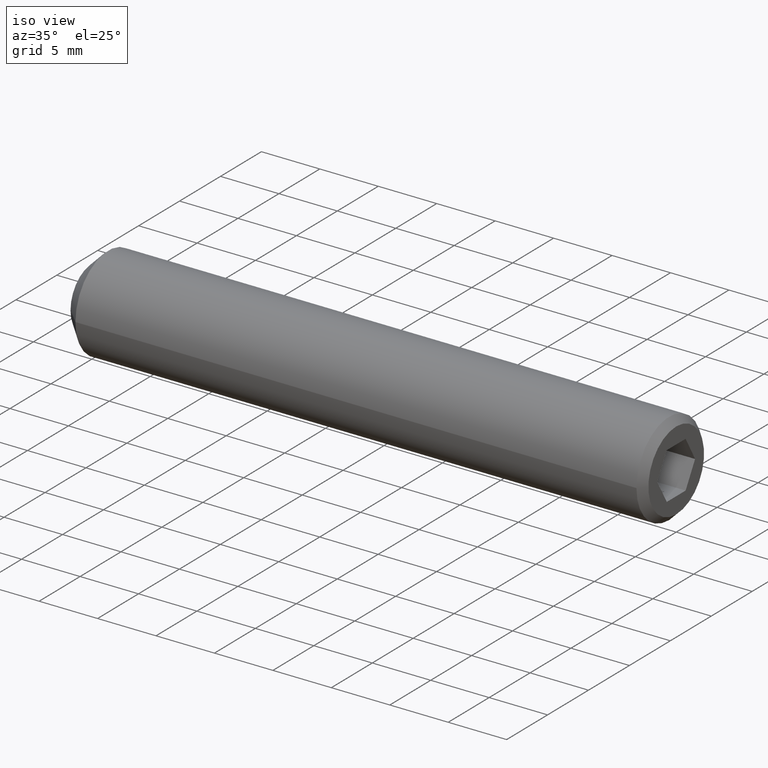
[diagram: clean part render]
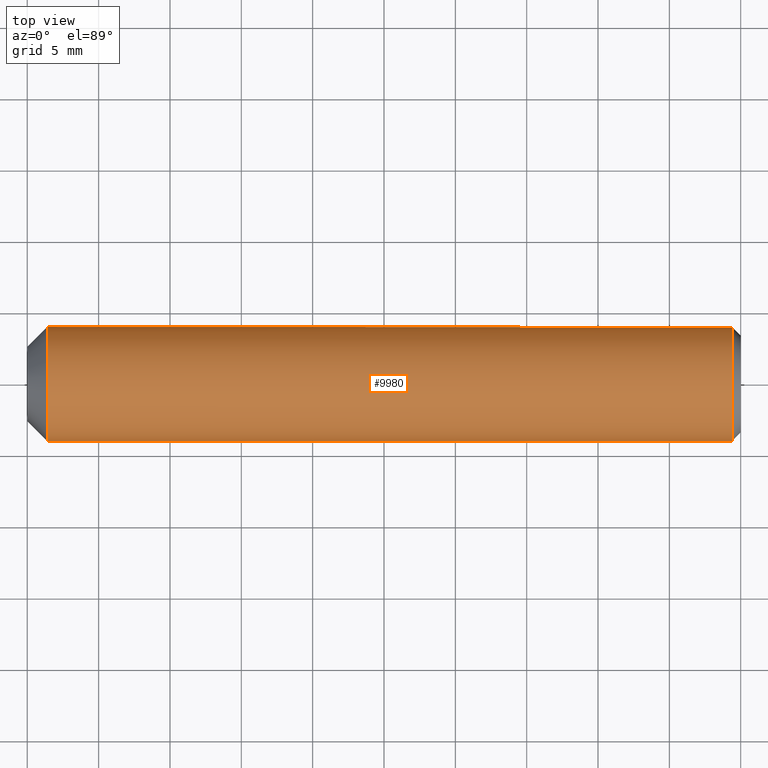
[diagram: tour spotlight — one face highlighted and labeled with its STEP entity id]
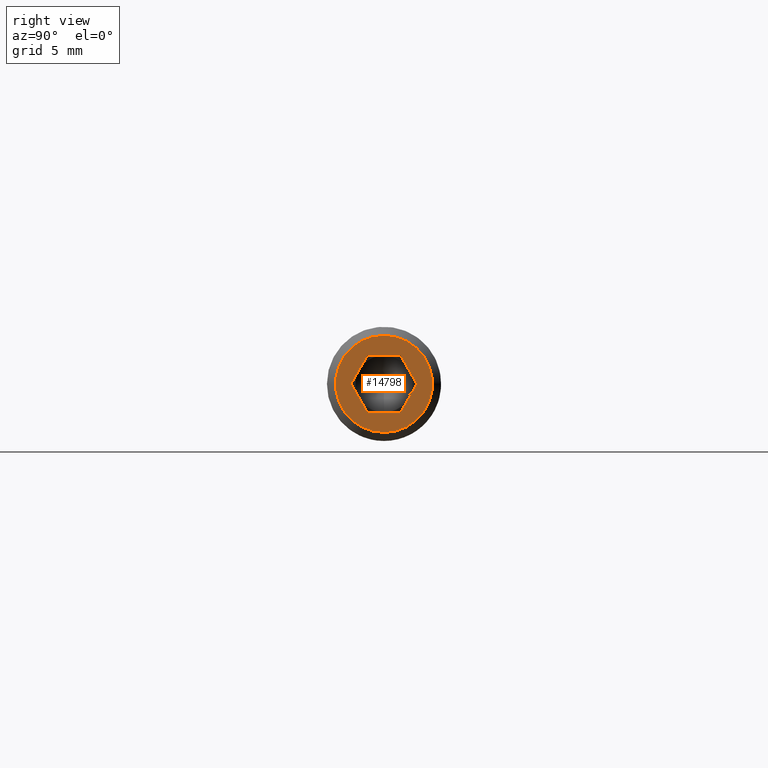
[diagram: tour spotlight — one face highlighted and labeled with its STEP entity id]
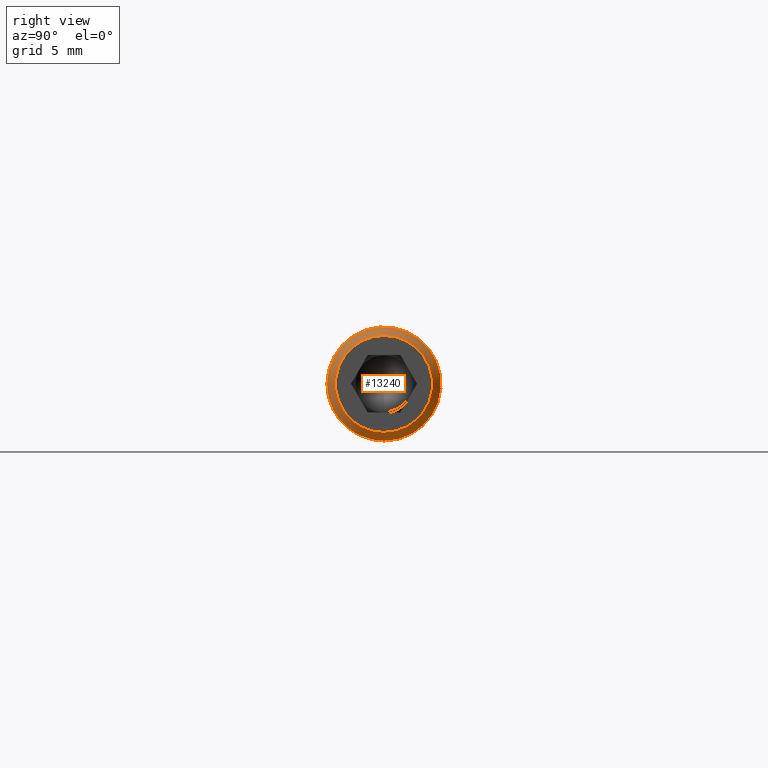
[diagram: tour spotlight — one face highlighted and labeled with its STEP entity id]
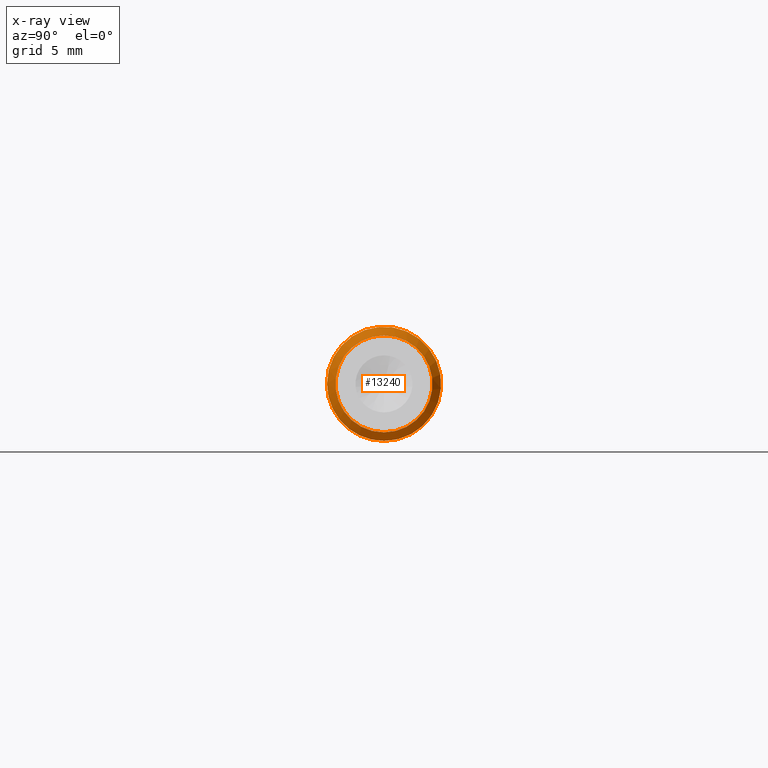
[diagram: x-ray of the same camera — body ghosted, this tour face saturated]
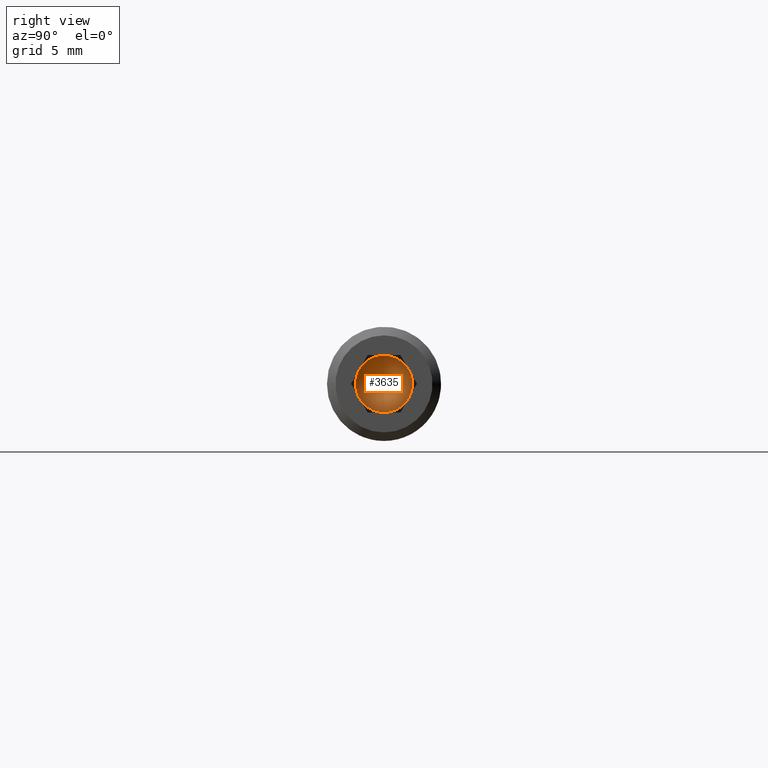
[diagram: tour spotlight — one face highlighted and labeled with its STEP entity id]
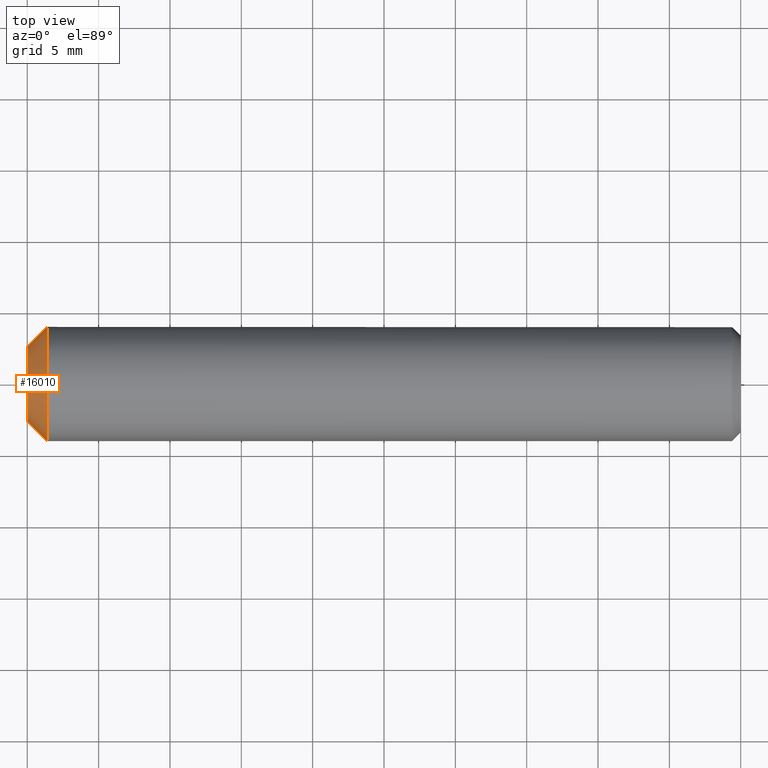
[diagram: tour spotlight — one face highlighted and labeled with its STEP entity id]
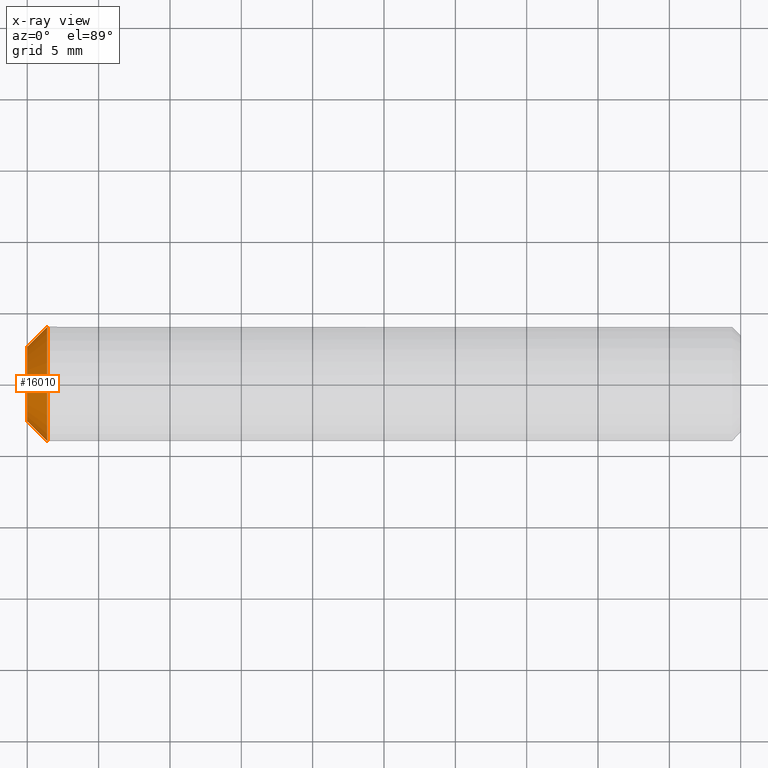
[diagram: x-ray of the same camera — body ghosted, this tour face saturated]
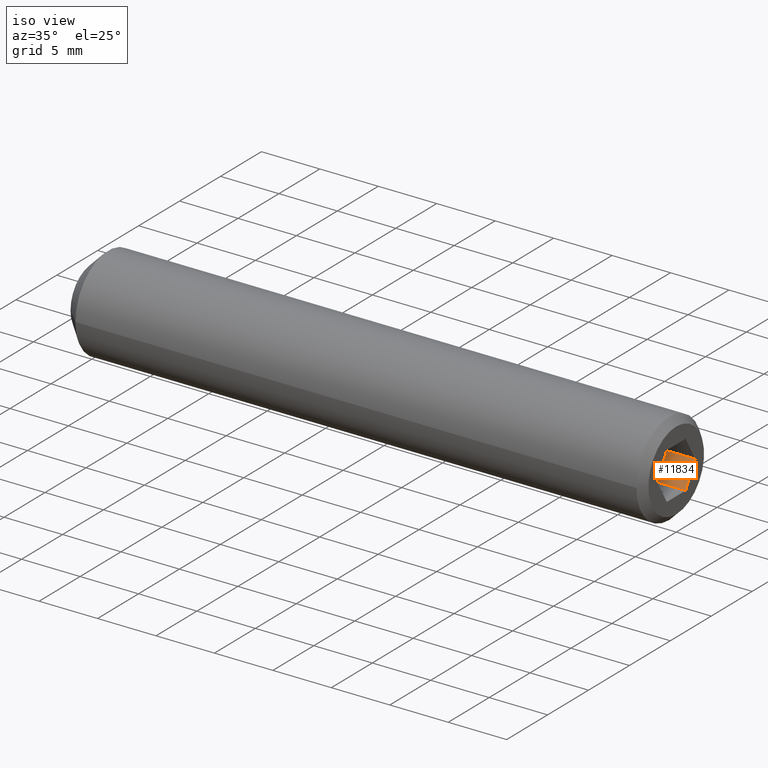
[diagram: tour spotlight — one face highlighted and labeled with its STEP entity id]
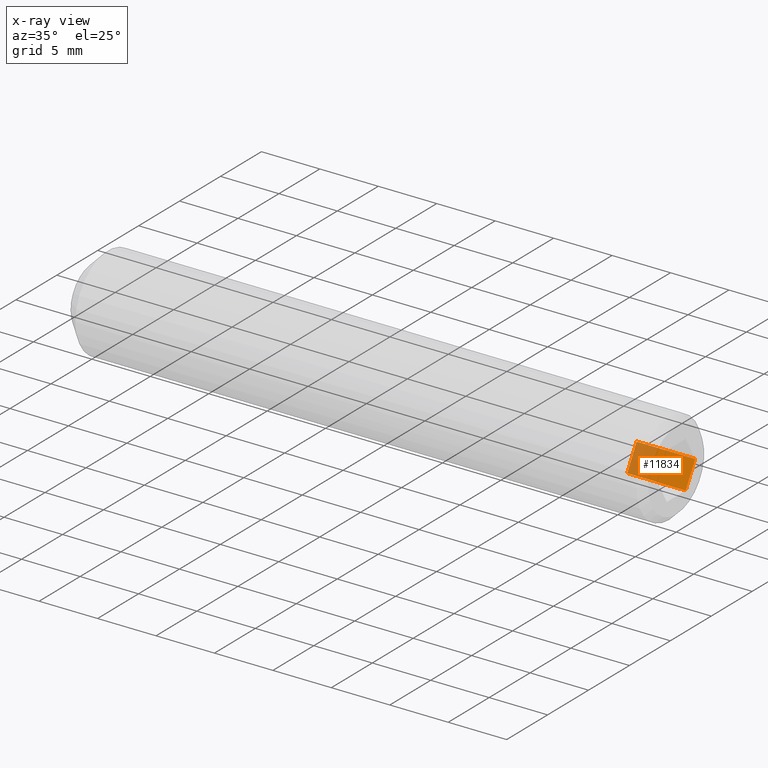
[diagram: x-ray of the same camera — body ghosted, this tour face saturated]
A machine part: a face-by-face anatomy tour. The part has 296 B-rep faces; the first image is the clean iso view, then the 6 largest visible faces are spotlighted one at a time (largest first), each with its STEP entity span.

Face 1 — top view, entity #9980. In plain terms, the highlighted cylindrical surface (bore or boss wall) has radius 4 mm, axis along (-1, -0, -0).
Definition (entity closure, byte-faithful):
#408 = DIRECTION ( 'NONE',  ( -1.000000000000000000, 0.0000000000000000000, 0.0000000000000000000 ) ) ;
#593 = CARTESIAN_POINT ( 'NONE',  ( 1.399999999999984400, -4.538988261647290200E-017, 0.0000000000000000000 ) ) ;
#1023 = CARTESIAN_POINT ( 'NONE',  ( 49.39999999999999900, 0.0000000000000000000, -4.000000000000000000 ) ) ;
#1213 = CIRCLE ( 'NONE', #15549, 4.000000000000000000 ) ;
#1735 = CARTESIAN_POINT ( 'NONE',  ( 49.39999999999999900, 0.0000000000000000000, 0.0000000000000000000 ) ) ;
#2731 = ORIENTED_EDGE ( 'NONE', *, *, #11013, .T. ) ;
#2830 = EDGE_LOOP ( 'NONE', ( #4532 ) ) ;
#3274 = VERTEX_POINT ( 'NONE', #1023 ) ;
#3319 = DIRECTION ( 'NONE',  ( 0.0000000000000000000, 0.0000000000000000000, -1.000000000000000000 ) ) ;
#4532 = ORIENTED_EDGE ( 'NONE', *, *, #13431, .F. ) ;
#6885 = FACE_OUTER_BOUND ( 'NONE', #2830, .T. ) ;
#7116 = CIRCLE ( 'NONE', #16351, 4.000000000000000000 ) ;
#9779 = AXIS2_PLACEMENT_3D ( 'NONE', #15257, #13717, #16650 ) ;
#9980 = ADVANCED_FACE ( 'NONE', ( #15437, #6885 ), #13478, .T. ) ;
#10343 = DIRECTION ( 'NONE',  ( -1.000000000000000000, 3.242134472605243700E-017, -0.0000000000000000000 ) ) ;
#11013 = EDGE_CURVE ( 'NONE', #3274, #3274, #7116, .T. ) ;
#12415 = CARTESIAN_POINT ( 'NONE',  ( 1.399999999999984100, -4.000000000000000000, 0.0000000000000000000 ) ) ;
#12910 = VERTEX_POINT ( 'NONE', #12415 ) ;
#13431 = EDGE_CURVE ( 'NONE', #12910, #12910, #1213, .T. ) ;
#13478 = CYLINDRICAL_SURFACE ( 'NONE', #9779, 4.000000000000000000 ) ;
#13717 = DIRECTION ( 'NONE',  ( -1.000000000000000000, -0.0000000000000000000, -0.0000000000000000000 ) ) ;
#15257 = CARTESIAN_POINT ( 'NONE',  ( 50.00000000000000000, 0.0000000000000000000, 0.0000000000000000000 ) ) ;
#15437 = FACE_OUTER_BOUND ( 'NONE', #16040, .T. ) ;
#15549 = AXIS2_PLACEMENT_3D ( 'NONE', #593, #10343, #15728 ) ;
#15728 = DIRECTION ( 'NONE',  ( -5.421010862427522200E-017, -1.000000000000000000, 0.0000000000000000000 ) ) ;
#16040 = EDGE_LOOP ( 'NONE', ( #2731 ) ) ;
#16351 = AXIS2_PLACEMENT_3D ( 'NONE', #1735, #408, #3319 ) ;
#16650 = DIRECTION ( 'NONE',  ( 0.0000000000000000000, 0.0000000000000000000, 1.000000000000000000 ) ) ;

Face 2 — right view, entity #14798. In plain terms, the highlighted planar face has unit normal (1, 0, 0).
Definition (entity closure, byte-faithful):
#169 = DIRECTION ( 'NONE',  ( 0.0000000000000000000, 1.000000000000000000, 1.877893248421447600E-016 ) ) ;
#290 = EDGE_CURVE ( 'NONE', #9988, #14489, #11666, .T. ) ;
#473 = VERTEX_POINT ( 'NONE', #9593 ) ;
#1322 = CARTESIAN_POINT ( 'NONE',  ( 50.00000000000000000, 2.309401076758500700, -2.008531840100152800E-016 ) ) ;
#1410 = VECTOR ( 'NONE', #169, 1000.000000000000000 ) ;
#1452 = EDGE_CURVE ( 'NONE', #473, #473, #9650, .T. ) ;
#1721 = CARTESIAN_POINT ( 'NONE',  ( 50.00000000000000000, -1.154700538379254300, 2.000000000000000000 ) ) ;
#1797 = EDGE_LOOP ( 'NONE', ( #2387, #9385, #6445, #11546, #5623, #9353 ) ) ;
#1820 = EDGE_CURVE ( 'NONE', #14489, #9138, #6803, .T. ) ;
#2387 = ORIENTED_EDGE ( 'NONE', *, *, #16859, .F. ) ;
#2442 = DIRECTION ( 'NONE',  ( 0.0000000000000000000, 0.0000000000000000000, -1.000000000000000000 ) ) ;
#2645 = VERTEX_POINT ( 'NONE', #17143 ) ;
#2829 = EDGE_CURVE ( 'NONE', #9138, #17783, #8749, .T. ) ;
#3111 = VECTOR ( 'NONE', #13780, 999.9999999999998900 ) ;
#4524 = CARTESIAN_POINT ( 'NONE',  ( 50.00000000000000000, -2.309401076758506500, -4.766870681724039000E-018 ) ) ;
#4611 = LINE ( 'NONE', #4524, #7209 ) ;
#5408 = CARTESIAN_POINT ( 'NONE',  ( 50.00000000000000000, -1.154700538379255700, -2.000000000000000000 ) ) ;
#5570 = CARTESIAN_POINT ( 'NONE',  ( 50.00000000000000000, 2.309401076758500700, -2.008531840100152800E-016 ) ) ;
#5623 = ORIENTED_EDGE ( 'NONE', *, *, #290, .F. ) ;
#5720 = FACE_BOUND ( 'NONE', #1797, .T. ) ;
#5847 = DIRECTION ( 'NONE',  ( 0.0000000000000000000, 0.4999999999999997800, -0.8660254037844387100 ) ) ;
#6445 = ORIENTED_EDGE ( 'NONE', *, *, #2829, .F. ) ;
#6461 = EDGE_CURVE ( 'NONE', #17783, #10834, #17455, .T. ) ;
#6636 = CARTESIAN_POINT ( 'NONE',  ( 50.00000000000000000, 0.0000000000000000000, 0.0000000000000000000 ) ) ;
#6742 = CARTESIAN_POINT ( 'NONE',  ( 50.00000000000000000, -1.154700538379255700, -2.000000000000000000 ) ) ;
#6803 = LINE ( 'NONE', #9274, #3111 ) ;
#6982 = AXIS2_PLACEMENT_3D ( 'NONE', #6636, #15024, #9569 ) ;
#7209 = VECTOR ( 'NONE', #5847, 1000.000000000000200 ) ;
#7225 = FACE_OUTER_BOUND ( 'NONE', #16334, .T. ) ;
#8679 = ORIENTED_EDGE ( 'NONE', *, *, #1452, .T. ) ;
#8749 = LINE ( 'NONE', #1322, #14688 ) ;
#9138 = VERTEX_POINT ( 'NONE', #5570 ) ;
#9274 = CARTESIAN_POINT ( 'NONE',  ( 50.00000000000000000, 1.154700538379249500, -1.999999999999999600 ) ) ;
#9353 = ORIENTED_EDGE ( 'NONE', *, *, #16824, .F. ) ;
#9385 = ORIENTED_EDGE ( 'NONE', *, *, #6461, .F. ) ;
#9418 = CARTESIAN_POINT ( 'NONE',  ( 50.00000000000000000, 1.154700538379249500, -1.999999999999999600 ) ) ;
#9569 = DIRECTION ( 'NONE',  ( 0.0000000000000000000, 0.0000000000000000000, -1.000000000000000000 ) ) ;
#9593 = CARTESIAN_POINT ( 'NONE',  ( 50.00000000000000000, 0.0000000000000000000, -3.399999999999997200 ) ) ;
#9650 = CIRCLE ( 'NONE', #14195, 3.399999999999997200 ) ;
#9988 = VERTEX_POINT ( 'NONE', #6742 ) ;
#10507 = PLANE ( 'NONE',  #6982 ) ;
#10802 = CARTESIAN_POINT ( 'NONE',  ( 50.00000000000000000, 0.0000000000000000000, 0.0000000000000000000 ) ) ;
#10834 = VERTEX_POINT ( 'NONE', #15358 ) ;
#11327 = VECTOR ( 'NONE', #16929, 1000.000000000000000 ) ;
#11546 = ORIENTED_EDGE ( 'NONE', *, *, #1820, .F. ) ;
#11666 = LINE ( 'NONE', #5408, #1410 ) ;
#12525 = CARTESIAN_POINT ( 'NONE',  ( 50.00000000000000000, 1.154700538379249500, 2.000000000000000000 ) ) ;
#13780 = DIRECTION ( 'NONE',  ( 0.0000000000000000000, 0.4999999999999999400, 0.8660254037844387100 ) ) ;
#14195 = AXIS2_PLACEMENT_3D ( 'NONE', #10802, #16312, #2442 ) ;
#14215 = VECTOR ( 'NONE', #15518, 1000.000000000000100 ) ;
#14489 = VERTEX_POINT ( 'NONE', #9418 ) ;
#14688 = VECTOR ( 'NONE', #15363, 1000.000000000000000 ) ;
#14798 = ADVANCED_FACE ( 'NONE', ( #5720, #7225 ), #10507, .T. ) ;
#15024 = DIRECTION ( 'NONE',  ( 1.000000000000000000, 0.0000000000000000000, 0.0000000000000000000 ) ) ;
#15358 = CARTESIAN_POINT ( 'NONE',  ( 50.00000000000000000, -1.154700538379254300, 2.000000000000000000 ) ) ;
#15363 = DIRECTION ( 'NONE',  ( 0.0000000000000000000, -0.4999999999999998900, 0.8660254037844387100 ) ) ;
#15518 = DIRECTION ( 'NONE',  ( 0.0000000000000000000, -0.5000000000000003300, -0.8660254037844384900 ) ) ;
#15534 = CARTESIAN_POINT ( 'NONE',  ( 50.00000000000000000, 1.154700538379249500, 2.000000000000000000 ) ) ;
#16312 = DIRECTION ( 'NONE',  ( 1.000000000000000000, 0.0000000000000000000, 0.0000000000000000000 ) ) ;
#16334 = EDGE_LOOP ( 'NONE', ( #8679 ) ) ;
#16824 = EDGE_CURVE ( 'NONE', #2645, #9988, #4611, .T. ) ;
#16859 = EDGE_CURVE ( 'NONE', #10834, #2645, #17944, .T. ) ;
#16929 = DIRECTION ( 'NONE',  ( 0.0000000000000000000, -1.000000000000000000, 0.0000000000000000000 ) ) ;
#17143 = CARTESIAN_POINT ( 'NONE',  ( 50.00000000000000000, -2.309401076758506000, 0.0000000000000000000 ) ) ;
#17455 = LINE ( 'NONE', #15534, #11327 ) ;
#17783 = VERTEX_POINT ( 'NONE', #12525 ) ;
#17944 = LINE ( 'NONE', #1721, #14215 ) ;

Face 3 — right view, entity #13240. An x-ray twin of the same camera follows (body ghosted, this face saturated) — the face is partly hidden behind the body. In plain terms, the highlighted conical surface has half-angle 45 deg.
Definition (entity closure, byte-faithful):
#292 = EDGE_LOOP ( 'NONE', ( #2281 ) ) ;
#408 = DIRECTION ( 'NONE',  ( -1.000000000000000000, 0.0000000000000000000, 0.0000000000000000000 ) ) ;
#473 = VERTEX_POINT ( 'NONE', #9593 ) ;
#1023 = CARTESIAN_POINT ( 'NONE',  ( 49.39999999999999900, 0.0000000000000000000, -4.000000000000000000 ) ) ;
#1174 = EDGE_LOOP ( 'NONE', ( #15381 ) ) ;
#1206 = DIRECTION ( 'NONE',  ( 0.0000000000000000000, 0.0000000000000000000, 1.000000000000000000 ) ) ;
#1268 = DIRECTION ( 'NONE',  ( -1.000000000000000000, 0.0000000000000000000, 0.0000000000000000000 ) ) ;
#1426 = FACE_BOUND ( 'NONE', #1174, .T. ) ;
#1452 = EDGE_CURVE ( 'NONE', #473, #473, #9650, .T. ) ;
#1735 = CARTESIAN_POINT ( 'NONE',  ( 49.39999999999999900, 0.0000000000000000000, 0.0000000000000000000 ) ) ;
#2281 = ORIENTED_EDGE ( 'NONE', *, *, #11013, .F. ) ;
#2442 = DIRECTION ( 'NONE',  ( 0.0000000000000000000, 0.0000000000000000000, -1.000000000000000000 ) ) ;
#3274 = VERTEX_POINT ( 'NONE', #1023 ) ;
#3319 = DIRECTION ( 'NONE',  ( 0.0000000000000000000, 0.0000000000000000000, -1.000000000000000000 ) ) ;
#6857 = CONICAL_SURFACE ( 'NONE', #13081, 3.399999999999997200, 0.7853981633974479500 ) ;
#7116 = CIRCLE ( 'NONE', #16351, 4.000000000000000000 ) ;
#9064 = FACE_OUTER_BOUND ( 'NONE', #292, .T. ) ;
#9593 = CARTESIAN_POINT ( 'NONE',  ( 50.00000000000000000, 0.0000000000000000000, -3.399999999999997200 ) ) ;
#9650 = CIRCLE ( 'NONE', #14195, 3.399999999999997200 ) ;
#10802 = CARTESIAN_POINT ( 'NONE',  ( 50.00000000000000000, 0.0000000000000000000, 0.0000000000000000000 ) ) ;
#11013 = EDGE_CURVE ( 'NONE', #3274, #3274, #7116, .T. ) ;
#12379 = CARTESIAN_POINT ( 'NONE',  ( 50.00000000000000000, 0.0000000000000000000, 0.0000000000000000000 ) ) ;
#13081 = AXIS2_PLACEMENT_3D ( 'NONE', #12379, #1268, #1206 ) ;
#13240 = ADVANCED_FACE ( 'NONE', ( #9064, #1426 ), #6857, .T. ) ;
#14195 = AXIS2_PLACEMENT_3D ( 'NONE', #10802, #16312, #2442 ) ;
#15381 = ORIENTED_EDGE ( 'NONE', *, *, #1452, .F. ) ;
#16312 = DIRECTION ( 'NONE',  ( 1.000000000000000000, 0.0000000000000000000, 0.0000000000000000000 ) ) ;
#16351 = AXIS2_PLACEMENT_3D ( 'NONE', #1735, #408, #3319 ) ;

Face 4 — right view, entity #3635. In plain terms, the highlighted conical surface has half-angle 59 deg.
Definition (entity closure, byte-faithful):
#156 = ORIENTED_EDGE ( 'NONE', *, *, #11343, .F. ) ;
#177 = CIRCLE ( 'NONE', #3845, 1.999999999999999600 ) ;
#574 = CIRCLE ( 'NONE', #2212, 1.999999999999999600 ) ;
#596 = DIRECTION ( 'NONE',  ( 0.0000000000000000000, 0.0000000000000000000, -1.000000000000000000 ) ) ;
#877 = VERTEX_POINT ( 'NONE', #5236 ) ;
#1168 = ORIENTED_EDGE ( 'NONE', *, *, #16903, .F. ) ;
#1233 = CARTESIAN_POINT ( 'NONE',  ( 45.00000000000000700, 0.0000000000000000000, 1.450057107126803100E-017 ) ) ;
#1370 = AXIS2_PLACEMENT_3D ( 'NONE', #1233, #8408, #15280 ) ;
#1896 = DIRECTION ( 'NONE',  ( -1.000000000000000000, -0.0000000000000000000, 0.0000000000000000000 ) ) ;
#2051 = ORIENTED_EDGE ( 'NONE', *, *, #9915, .F. ) ;
#2212 = AXIS2_PLACEMENT_3D ( 'NONE', #10862, #16662, #2503 ) ;
#2323 = DIRECTION ( 'NONE',  ( -1.000000000000000000, -0.0000000000000000000, 0.0000000000000000000 ) ) ;
#2452 = CIRCLE ( 'NONE', #2667, 1.999999999999999600 ) ;
#2503 = DIRECTION ( 'NONE',  ( 0.0000000000000000000, 0.0000000000000000000, -1.000000000000000000 ) ) ;
#2667 = AXIS2_PLACEMENT_3D ( 'NONE', #5586, #17867, #9546 ) ;
#2779 = EDGE_CURVE ( 'NONE', #10602, #7362, #13376, .T. ) ;
#3635 = ADVANCED_FACE ( 'NONE', ( #10940 ), #17513, .F. ) ;
#3677 = CARTESIAN_POINT ( 'NONE',  ( 45.00000000000000700, 0.0000000000000000000, 1.450057107126803100E-017 ) ) ;
#3845 = AXIS2_PLACEMENT_3D ( 'NONE', #3677, #2323, #13436 ) ;
#4521 = CIRCLE ( 'NONE', #1370, 1.999999999999999600 ) ;
#4933 = CARTESIAN_POINT ( 'NONE',  ( 45.00000000000000700, 1.732050807568877200, -0.9999999999999997800 ) ) ;
#5236 = CARTESIAN_POINT ( 'NONE',  ( 45.00000000000000700, -1.732050807568877400, -0.9999999999999995600 ) ) ;
#5434 = VERTEX_POINT ( 'NONE', #8226 ) ;
#5483 = CIRCLE ( 'NONE', #10288, 1.999999999999999600 ) ;
#5586 = CARTESIAN_POINT ( 'NONE',  ( 45.00000000000000700, 0.0000000000000000000, 1.450057107126803100E-017 ) ) ;
#5969 = DIRECTION ( 'NONE',  ( 0.0000000000000000000, 0.0000000000000000000, 1.000000000000000000 ) ) ;
#6256 = VERTEX_POINT ( 'NONE', #14322 ) ;
#7362 = VERTEX_POINT ( 'NONE', #14335 ) ;
#8226 = CARTESIAN_POINT ( 'NONE',  ( 45.00000000000000700, 3.755786496842895100E-016, -2.000000000000000000 ) ) ;
#8408 = DIRECTION ( 'NONE',  ( -1.000000000000000000, -0.0000000000000000000, 0.0000000000000000000 ) ) ;
#9125 = ORIENTED_EDGE ( 'NONE', *, *, #2779, .F. ) ;
#9373 = CARTESIAN_POINT ( 'NONE',  ( 45.00000000000000700, 0.0000000000000000000, 1.999999999999999600 ) ) ;
#9546 = DIRECTION ( 'NONE',  ( 0.0000000000000000000, 0.0000000000000000000, 1.000000000000000000 ) ) ;
#9554 = EDGE_LOOP ( 'NONE', ( #10084, #156, #9125, #2051, #1168, #13750 ) ) ;
#9915 = EDGE_CURVE ( 'NONE', #6256, #10602, #177, .T. ) ;
#10084 = ORIENTED_EDGE ( 'NONE', *, *, #12972, .T. ) ;
#10249 = CARTESIAN_POINT ( 'NONE',  ( 45.00000000000000700, 0.0000000000000000000, 1.450057107126803100E-017 ) ) ;
#10288 = AXIS2_PLACEMENT_3D ( 'NONE', #10249, #1896, #5969 ) ;
#10349 = CARTESIAN_POINT ( 'NONE',  ( 45.00000000000000700, 0.0000000000000000000, -3.673940397442067300E-016 ) ) ;
#10602 = VERTEX_POINT ( 'NONE', #9373 ) ;
#10862 = CARTESIAN_POINT ( 'NONE',  ( 45.00000000000000700, 0.0000000000000000000, -3.673940397442067300E-016 ) ) ;
#10940 = FACE_OUTER_BOUND ( 'NONE', #9554, .T. ) ;
#11079 = DIRECTION ( 'NONE',  ( -1.000000000000000000, -0.0000000000000000000, 0.0000000000000000000 ) ) ;
#11343 = EDGE_CURVE ( 'NONE', #7362, #13623, #4521, .T. ) ;
#12972 = EDGE_CURVE ( 'NONE', #5434, #13623, #574, .T. ) ;
#13169 = AXIS2_PLACEMENT_3D ( 'NONE', #10349, #14511, #596 ) ;
#13376 = CIRCLE ( 'NONE', #14449, 1.999999999999999600 ) ;
#13436 = DIRECTION ( 'NONE',  ( 0.0000000000000000000, 0.0000000000000000000, 1.000000000000000000 ) ) ;
#13623 = VERTEX_POINT ( 'NONE', #4933 ) ;
#13750 = ORIENTED_EDGE ( 'NONE', *, *, #15360, .F. ) ;
#13817 = DIRECTION ( 'NONE',  ( 0.0000000000000000000, 0.0000000000000000000, 1.000000000000000000 ) ) ;
#14322 = CARTESIAN_POINT ( 'NONE',  ( 45.00000000000000700, -1.732050807568876500, 1.000000000000000200 ) ) ;
#14335 = CARTESIAN_POINT ( 'NONE',  ( 45.00000000000000700, 1.732050807568876700, 0.9999999999999993300 ) ) ;
#14449 = AXIS2_PLACEMENT_3D ( 'NONE', #16703, #11079, #13817 ) ;
#14511 = DIRECTION ( 'NONE',  ( 1.000000000000000000, -0.0000000000000000000, -1.147327161289390400E-016 ) ) ;
#15280 = DIRECTION ( 'NONE',  ( 0.0000000000000000000, 0.0000000000000000000, 1.000000000000000000 ) ) ;
#15360 = EDGE_CURVE ( 'NONE', #5434, #877, #2452, .T. ) ;
#16662 = DIRECTION ( 'NONE',  ( 1.000000000000000000, -0.0000000000000000000, -1.147327161289390400E-016 ) ) ;
#16703 = CARTESIAN_POINT ( 'NONE',  ( 45.00000000000000700, 0.0000000000000000000, 1.450057107126803100E-017 ) ) ;
#16903 = EDGE_CURVE ( 'NONE', #877, #6256, #5483, .T. ) ;
#17513 = CONICAL_SURFACE ( 'NONE', #13169, 1.999999999999999600, 1.029744258676649400 ) ;
#17867 = DIRECTION ( 'NONE',  ( -1.000000000000000000, -0.0000000000000000000, 0.0000000000000000000 ) ) ;

Face 5 — top view, entity #16010. An x-ray twin of the same camera follows (body ghosted, this face saturated) — the face is partly hidden behind the body. In plain terms, the highlighted conical surface has half-angle 45 deg.
Definition (entity closure, byte-faithful):
#593 = CARTESIAN_POINT ( 'NONE',  ( 1.399999999999984400, -4.538988261647290200E-017, 0.0000000000000000000 ) ) ;
#1213 = CIRCLE ( 'NONE', #15549, 4.000000000000000000 ) ;
#1589 = ORIENTED_EDGE ( 'NONE', *, *, #13431, .T. ) ;
#1901 = CARTESIAN_POINT ( 'NONE',  ( -9.654196427920979400E-017, 3.130020304426501400E-033, 0.0000000000000000000 ) ) ;
#2025 = DIRECTION ( 'NONE',  ( 3.242134472605243000E-017, 1.000000000000000000, 0.0000000000000000000 ) ) ;
#3631 = CIRCLE ( 'NONE', #17306, 2.600000000000000100 ) ;
#4561 = EDGE_LOOP ( 'NONE', ( #1589 ) ) ;
#4625 = CONICAL_SURFACE ( 'NONE', #13902, 2.600000000000000100, 0.7853981633974539400 ) ;
#5346 = ORIENTED_EDGE ( 'NONE', *, *, #13979, .F. ) ;
#5680 = EDGE_LOOP ( 'NONE', ( #5346 ) ) ;
#8158 = CARTESIAN_POINT ( 'NONE',  ( -9.654196427920979400E-017, 3.130020304426501400E-033, 0.0000000000000000000 ) ) ;
#10343 = DIRECTION ( 'NONE',  ( -1.000000000000000000, 3.242134472605243700E-017, -0.0000000000000000000 ) ) ;
#12399 = DIRECTION ( 'NONE',  ( -1.000000000000000000, 3.242134472605243700E-017, -0.0000000000000000000 ) ) ;
#12415 = CARTESIAN_POINT ( 'NONE',  ( 1.399999999999984100, -4.000000000000000000, 0.0000000000000000000 ) ) ;
#12492 = FACE_BOUND ( 'NONE', #5680, .T. ) ;
#12910 = VERTEX_POINT ( 'NONE', #12415 ) ;
#13431 = EDGE_CURVE ( 'NONE', #12910, #12910, #1213, .T. ) ;
#13788 = DIRECTION ( 'NONE',  ( -3.242134472605243000E-017, -1.000000000000000000, 0.0000000000000000000 ) ) ;
#13902 = AXIS2_PLACEMENT_3D ( 'NONE', #1901, #14413, #2025 ) ;
#13979 = EDGE_CURVE ( 'NONE', #17703, #17703, #3631, .T. ) ;
#14413 = DIRECTION ( 'NONE',  ( 1.000000000000000000, -3.242134472605243700E-017, 0.0000000000000000000 ) ) ;
#14456 = FACE_OUTER_BOUND ( 'NONE', #4561, .T. ) ;
#15549 = AXIS2_PLACEMENT_3D ( 'NONE', #593, #10343, #15728 ) ;
#15728 = DIRECTION ( 'NONE',  ( -5.421010862427522200E-017, -1.000000000000000000, 0.0000000000000000000 ) ) ;
#16010 = ADVANCED_FACE ( 'NONE', ( #14456, #12492 ), #4625, .T. ) ;
#17306 = AXIS2_PLACEMENT_3D ( 'NONE', #8158, #12399, #13788 ) ;
#17703 = VERTEX_POINT ( 'NONE', #17861 ) ;
#17861 = CARTESIAN_POINT ( 'NONE',  ( -1.808374605669461300E-016, -2.600000000000000100, 0.0000000000000000000 ) ) ;

Face 6 — iso view, entity #11834. An x-ray twin of the same camera follows (body ghosted, this face saturated) — the face is partly hidden behind the body. In plain terms, the highlighted planar face has unit normal (0, 0.866, -0.5).
Definition (entity closure, byte-faithful):
#254 = VECTOR ( 'NONE', #15292, 1000.000000000000000 ) ;
#643 = CARTESIAN_POINT ( 'NONE',  ( 45.00000000000000700, 1.154700538379249500, -2.000000000000000000 ) ) ;
#1033 = EDGE_CURVE ( 'NONE', #11317, #14489, #10319, .T. ) ;
#1126 = LINE ( 'NONE', #4297, #254 ) ;
#1461 = FACE_OUTER_BOUND ( 'NONE', #16104, .T. ) ;
#1820 = EDGE_CURVE ( 'NONE', #14489, #9138, #6803, .T. ) ;
#1951 = EDGE_CURVE ( 'NONE', #13623, #7484, #16236, .T. ) ;
#1970 = DIRECTION ( 'NONE',  ( 1.000000000000000000, -0.0000000000000000000, 6.123031769111886300E-017 ) ) ;
#2872 = ORIENTED_EDGE ( 'NONE', *, *, #3116, .F. ) ;
#3111 = VECTOR ( 'NONE', #13780, 999.9999999999998900 ) ;
#3116 = EDGE_CURVE ( 'NONE', #7484, #9138, #1126, .T. ) ;
#3622 = CARTESIAN_POINT ( 'NONE',  ( 45.00000000000000700, 1.154700538379249500, -2.000000000000000000 ) ) ;
#3721 = CARTESIAN_POINT ( 'NONE',  ( 45.00000000000000700, 1.154700538379249500, -2.000000000000000000 ) ) ;
#4106 = DIRECTION ( 'NONE',  ( 0.0000000000000000000, 0.4999999999999999400, 0.8660254037844387100 ) ) ;
#4168 = CARTESIAN_POINT ( 'NONE',  ( 45.00000000000000700, 1.154700538379249500, -2.000000000000000000 ) ) ;
#4297 = CARTESIAN_POINT ( 'NONE',  ( 45.00000000000000700, 2.309401076758500700, -5.070047724656095900E-016 ) ) ;
#4359 = ORIENTED_EDGE ( 'NONE', *, *, #1951, .F. ) ;
#4933 = CARTESIAN_POINT ( 'NONE',  ( 45.00000000000000700, 1.732050807568877200, -0.9999999999999997800 ) ) ;
#5570 = CARTESIAN_POINT ( 'NONE',  ( 50.00000000000000000, 2.309401076758500700, -2.008531840100152800E-016 ) ) ;
#6602 = VECTOR ( 'NONE', #1970, 1000.000000000000000 ) ;
#6803 = LINE ( 'NONE', #9274, #3111 ) ;
#6843 = DIRECTION ( 'NONE',  ( 0.0000000000000000000, 0.4999999999999999400, 0.8660254037844387100 ) ) ;
#7484 = VERTEX_POINT ( 'NONE', #12208 ) ;
#8180 = ORIENTED_EDGE ( 'NONE', *, *, #1820, .T. ) ;
#9138 = VERTEX_POINT ( 'NONE', #5570 ) ;
#9269 = DIRECTION ( 'NONE',  ( 3.061515884555942500E-017, 0.8660254037844387100, -0.4999999999999999400 ) ) ;
#9274 = CARTESIAN_POINT ( 'NONE',  ( 50.00000000000000000, 1.154700538379249500, -1.999999999999999600 ) ) ;
#9418 = CARTESIAN_POINT ( 'NONE',  ( 50.00000000000000000, 1.154700538379249500, -1.999999999999999600 ) ) ;
#10260 = AXIS2_PLACEMENT_3D ( 'NONE', #3622, #9269, #17651 ) ;
#10319 = LINE ( 'NONE', #643, #6602 ) ;
#11317 = VERTEX_POINT ( 'NONE', #15399 ) ;
#11460 = ORIENTED_EDGE ( 'NONE', *, *, #15408, .F. ) ;
#11834 = ADVANCED_FACE ( 'NONE', ( #1461 ), #16195, .F. ) ;
#12208 = CARTESIAN_POINT ( 'NONE',  ( 45.00000000000000700, 2.309401076758500700, -5.070047724656095900E-016 ) ) ;
#13623 = VERTEX_POINT ( 'NONE', #4933 ) ;
#13780 = DIRECTION ( 'NONE',  ( 0.0000000000000000000, 0.4999999999999999400, 0.8660254037844387100 ) ) ;
#14489 = VERTEX_POINT ( 'NONE', #9418 ) ;
#15110 = VECTOR ( 'NONE', #6843, 999.9999999999998900 ) ;
#15292 = DIRECTION ( 'NONE',  ( 1.000000000000000000, -0.0000000000000000000, 6.123031769111886300E-017 ) ) ;
#15399 = CARTESIAN_POINT ( 'NONE',  ( 45.00000000000000700, 1.154700538379249500, -2.000000000000000000 ) ) ;
#15408 = EDGE_CURVE ( 'NONE', #11317, #13623, #15771, .T. ) ;
#15771 = LINE ( 'NONE', #3721, #15110 ) ;
#16020 = VECTOR ( 'NONE', #4106, 999.9999999999998900 ) ;
#16104 = EDGE_LOOP ( 'NONE', ( #8180, #2872, #4359, #11460, #17928 ) ) ;
#16195 = PLANE ( 'NONE',  #10260 ) ;
#16236 = LINE ( 'NONE', #4168, #16020 ) ;
#17651 = DIRECTION ( 'NONE',  ( 0.0000000000000000000, 0.4999999999999999400, 0.8660254037844387100 ) ) ;
#17928 = ORIENTED_EDGE ( 'NONE', *, *, #1033, .T. ) ;